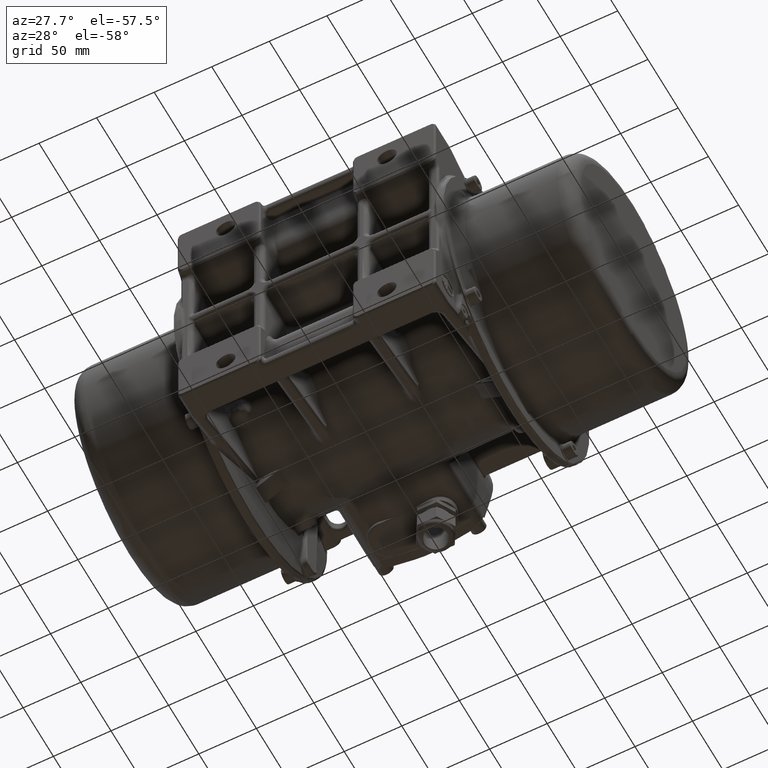
[diagram: clean part render]
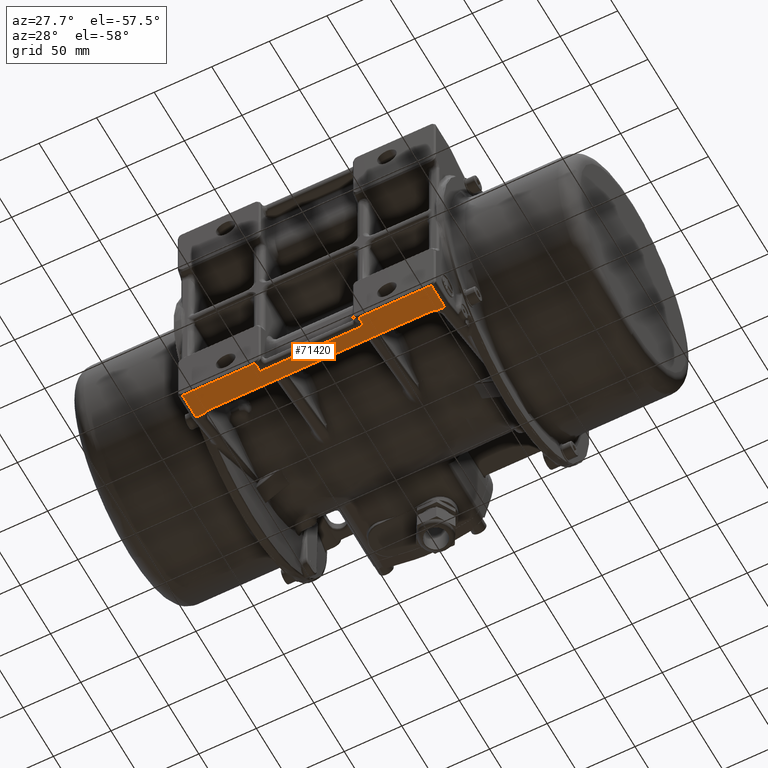
[diagram: same view with one face highlighted and labeled with its STEP entity id]
A machine part, auxiliary view. The second image highlights one B-rep face of the part: STEP entity #71420.
In plain terms, the highlighted planar face has unit normal (0, 0, -1).
Its self-contained STEP definition (entity closure, byte-faithful):
#2338 = VECTOR ( 'NONE', #97333, 1000.000000000000000 ) ;
#5724 = CARTESIAN_POINT ( 'NONE',  ( -104.9763923249194000, -65.66341387733380900, -115.0000000000000000 ) ) ;
#6106 = VECTOR ( 'NONE', #157576, 1000.000000000000000 ) ;
#6831 = EDGE_CURVE ( 'NONE', #158943, #10158, #45645, .T. ) ;
#9648 = VECTOR ( 'NONE', #144956, 1000.000000000000000 ) ;
#10158 = VERTEX_POINT ( 'NONE', #144009 ) ;
#11416 = ORIENTED_EDGE ( 'NONE', *, *, #109882, .T. ) ;
#12481 = EDGE_CURVE ( 'NONE', #116596, #122172, #183683, .T. ) ;
#13867 = CARTESIAN_POINT ( 'NONE',  ( 95.34508423835029600, -65.06525406753129900, -115.0000000000000000 ) ) ;
#19187 = AXIS2_PLACEMENT_3D ( 'NONE', #193343, #86679, #194000 ) ;
#20504 = VECTOR ( 'NONE', #118751, 1000.000000000000000 ) ;
#21161 = CARTESIAN_POINT ( 'NONE',  ( -106.0609846594930000, -65.06525406753129900, -115.0000000000000000 ) ) ;
#26195 = VECTOR ( 'NONE', #98720, 1000.000000000000000 ) ;
#27162 = VECTOR ( 'NONE', #136116, 1000.000000000000000 ) ;
#29799 = EDGE_LOOP ( 'NONE', ( #127564, #11416, #63375, #105199, #59563, #101004, #141035, #68606, #109958, #65617, #150318, #38429 ) ) ;
#33730 = DIRECTION ( 'NONE',  ( -1.000000000000000000, 0.0000000000000000000, 0.0000000000000000000 ) ) ;
#34005 = VERTEX_POINT ( 'NONE', #197857 ) ;
#38429 = ORIENTED_EDGE ( 'NONE', *, *, #91145, .T. ) ;
#41847 = LINE ( 'NONE', #110906, #190752 ) ;
#44241 = CARTESIAN_POINT ( 'NONE',  ( 102.6420498956300000, -76.12854099828210500, -115.0000000000000000 ) ) ;
#45645 = LINE ( 'NONE', #57659, #9648 ) ;
#57659 = CARTESIAN_POINT ( 'NONE',  ( -5.357950104370020000, -87.19182792903309600, -115.0000000000000000 ) ) ;
#57974 = CARTESIAN_POINT ( 'NONE',  ( -50.35795010436999800, -87.19182792903299600, -115.0000000000000000 ) ) ;
#59563 = ORIENTED_EDGE ( 'NONE', *, *, #6831, .T. ) ;
#63375 = ORIENTED_EDGE ( 'NONE', *, *, #142141, .T. ) ;
#65617 = ORIENTED_EDGE ( 'NONE', *, *, #198214, .T. ) ;
#68606 = ORIENTED_EDGE ( 'NONE', *, *, #128386, .F. ) ;
#71420 = ADVANCED_FACE ( 'NONE', ( #163781 ), #84698, .T. ) ;
#72097 = B_SPLINE_CURVE_WITH_KNOTS ( 'NONE', 3,
 ( #74914, #105112, #90358, #197697, #105796, #13867 ),
 .UNSPECIFIED., .F., .F.,
 ( 4, 2, 4 ),
 ( 0.0000000000000000000, 0.5000000000000000000, 1.000000000000000000 ),
 .UNSPECIFIED. ) ;
#74914 = CARTESIAN_POINT ( 'NONE',  ( 90.64204989563000900, -66.39182797671671200, -115.0000000000000000 ) ) ;
#76379 = EDGE_CURVE ( 'NONE', #122124, #192654, #81315, .T. ) ;
#76577 = CARTESIAN_POINT ( 'NONE',  ( -5.357950104370020000, -78.89182797671671200, -115.0000000000000000 ) ) ;
#77079 = VECTOR ( 'NONE', #119950, 1000.000000000000000 ) ;
#81315 = LINE ( 'NONE', #150278, #198970 ) ;
#81891 = CARTESIAN_POINT ( 'NONE',  ( 39.64204989563000200, -76.12854099828210500, -115.0000000000000000 ) ) ;
#82554 = EDGE_CURVE ( 'NONE', #10158, #34005, #87671, .T. ) ;
#84698 = PLANE ( 'NONE',  #19187 ) ;
#86679 = DIRECTION ( 'NONE',  ( 0.0000000000000000000, 0.0000000000000000000, -1.000000000000000000 ) ) ;
#87671 = LINE ( 'NONE', #142150, #6106 ) ;
#90358 = CARTESIAN_POINT ( 'NONE',  ( 92.29079568989548900, -66.27789592823744200, -115.0000000000000100 ) ) ;
#91145 = EDGE_CURVE ( 'NONE', #192654, #116596, #154396, .T. ) ;
#91513 = LINE ( 'NONE', #103855, #77079 ) ;
#93230 = CARTESIAN_POINT ( 'NONE',  ( 39.64204989563000200, -87.19182792903299600, -115.0000000000000000 ) ) ;
#93599 = EDGE_CURVE ( 'NONE', #155631, #158943, #91513, .T. ) ;
#96876 = CARTESIAN_POINT ( 'NONE',  ( 39.64204989563000200, -78.89182797671671200, -114.9999999992876000 ) ) ;
#97333 = DIRECTION ( 'NONE',  ( 0.0000000000000000000, 1.000000000000000000, 0.0000000000000000000 ) ) ;
#97629 = CARTESIAN_POINT ( 'NONE',  ( -103.8089240581407900, -66.08113929133359900, -115.0000000000000000 ) ) ;
#98720 = DIRECTION ( 'NONE',  ( 1.000000000000000000, 0.0000000000000000000, 0.0000000000000000000 ) ) ;
#101004 = ORIENTED_EDGE ( 'NONE', *, *, #82554, .T. ) ;
#103080 = EDGE_CURVE ( 'NONE', #158074, #174551, #41847, .T. ) ;
#103855 = CARTESIAN_POINT ( 'NONE',  ( -50.35795010436999800, -76.12854099828220500, -115.0000000000000000 ) ) ;
#105112 = CARTESIAN_POINT ( 'NONE',  ( 91.46838258118278000, -66.39172674197493500, -114.9999999999999900 ) ) ;
#105199 = ORIENTED_EDGE ( 'NONE', *, *, #93599, .T. ) ;
#105796 = CARTESIAN_POINT ( 'NONE',  ( 94.63992502462140500, -65.49732653513696300, -115.0000000000000100 ) ) ;
#109882 = EDGE_CURVE ( 'NONE', #122172, #117189, #129531, .T. ) ;
#109958 = ORIENTED_EDGE ( 'NONE', *, *, #103080, .T. ) ;
#109985 = B_SPLINE_CURVE_WITH_KNOTS ( 'NONE', 3,
 ( #127828, #174084, #189550, #97629, #5724, #113043, #21161 ),
 .UNSPECIFIED., .F., .F.,
 ( 4, 1, 1, 1, 4 ),
 ( 0.0000000000000000000, 0.2500000000000008900, 0.5000000000000000000, 0.7499999999999993300, 1.000000000000000000 ),
 .UNSPECIFIED. ) ;
#110906 = CARTESIAN_POINT ( 'NONE',  ( -5.357950104370020000, -66.39182797671671200, -115.0000000000000000 ) ) ;
#113043 = CARTESIAN_POINT ( 'NONE',  ( -105.7096586235704100, -65.28058140539579300, -115.0000000000000000 ) ) ;
#116596 = VERTEX_POINT ( 'NONE', #133287 ) ;
#117189 = VERTEX_POINT ( 'NONE', #96876 ) ;
#118751 = DIRECTION ( 'NONE',  ( -1.000000000000000000, 0.0000000000000000000, 0.0000000000000000000 ) ) ;
#119950 = DIRECTION ( 'NONE',  ( 0.0000000000000000000, -1.000000000000000000, 0.0000000000000000000 ) ) ;
#122124 = VERTEX_POINT ( 'NONE', #152230 ) ;
#122172 = VERTEX_POINT ( 'NONE', #93230 ) ;
#123293 = VECTOR ( 'NONE', #33730, 1000.000000000000000 ) ;
#126311 = DIRECTION ( 'NONE',  ( 1.000000000000000000, 0.0000000000000000000, 0.0000000000000000000 ) ) ;
#127356 = CARTESIAN_POINT ( 'NONE',  ( -50.35795010436999800, -78.89182797671671200, -114.9999999992876000 ) ) ;
#127564 = ORIENTED_EDGE ( 'NONE', *, *, #12481, .T. ) ;
#127828 = CARTESIAN_POINT ( 'NONE',  ( -101.3579503167726000, -66.39182797671671200, -115.0000000000000000 ) ) ;
#128386 = EDGE_CURVE ( 'NONE', #158074, #139951, #109985, .T. ) ;
#129531 = LINE ( 'NONE', #81891, #2338 ) ;
#133287 = CARTESIAN_POINT ( 'NONE',  ( 102.6420498956300000, -87.19182792903299600, -115.0000000000000000 ) ) ;
#136116 = DIRECTION ( 'NONE',  ( 0.0000000000000000000, -1.000000000000000000, 0.0000000000000000000 ) ) ;
#139951 = VERTEX_POINT ( 'NONE', #189257 ) ;
#141035 = ORIENTED_EDGE ( 'NONE', *, *, #184479, .T. ) ;
#142141 = EDGE_CURVE ( 'NONE', #117189, #155631, #164037, .T. ) ;
#142150 = CARTESIAN_POINT ( 'NONE',  ( -113.3579501043699900, -76.12912069402330000, -115.0000000000000000 ) ) ;
#144009 = CARTESIAN_POINT ( 'NONE',  ( -113.3579501043699900, -87.19182792903299600, -115.0000000000000000 ) ) ;
#144956 = DIRECTION ( 'NONE',  ( -1.000000000000000000, 0.0000000000000000000, 0.0000000000000000000 ) ) ;
#150278 = CARTESIAN_POINT ( 'NONE',  ( -5.357950104370020000, -65.06525406753129900, -115.0000000000000000 ) ) ;
#150318 = ORIENTED_EDGE ( 'NONE', *, *, #76379, .T. ) ;
#152230 = CARTESIAN_POINT ( 'NONE',  ( 95.34508423835029600, -65.06525406753129900, -115.0000000000000000 ) ) ;
#154396 = LINE ( 'NONE', #44241, #27162 ) ;
#155631 = VERTEX_POINT ( 'NONE', #127356 ) ;
#157576 = DIRECTION ( 'NONE',  ( 0.0000000000000000000, 1.000000000000000000, 0.0000000000000000000 ) ) ;
#158074 = VERTEX_POINT ( 'NONE', #177170 ) ;
#158943 = VERTEX_POINT ( 'NONE', #57974 ) ;
#163781 = FACE_OUTER_BOUND ( 'NONE', #29799, .T. ) ;
#164037 = LINE ( 'NONE', #76577, #123293 ) ;
#165741 = DIRECTION ( 'NONE',  ( 1.000000000000000000, 0.0000000000000000000, 0.0000000000000000000 ) ) ;
#174084 = CARTESIAN_POINT ( 'NONE',  ( -101.7700132318095900, -66.39182797671671200, -115.0000000000000000 ) ) ;
#174551 = VERTEX_POINT ( 'NONE', #175002 ) ;
#175002 = CARTESIAN_POINT ( 'NONE',  ( 90.64204989563000900, -66.39182797671671200, -115.0000000000000000 ) ) ;
#177170 = CARTESIAN_POINT ( 'NONE',  ( -101.3579503167726000, -66.39182797671671200, -115.0000000000000000 ) ) ;
#181104 = CARTESIAN_POINT ( 'NONE',  ( -5.357950104370010200, -87.19182792903299600, -115.0000000000000000 ) ) ;
#183683 = LINE ( 'NONE', #181104, #20504 ) ;
#184479 = EDGE_CURVE ( 'NONE', #34005, #139951, #184640, .T. ) ;
#184640 = LINE ( 'NONE', #191272, #26195 ) ;
#189257 = CARTESIAN_POINT ( 'NONE',  ( -106.0609846594930000, -65.06525406753129900, -115.0000000000000000 ) ) ;
#189550 = CARTESIAN_POINT ( 'NONE',  ( -102.5952508996560100, -66.33505687601289900, -115.0000000000000000 ) ) ;
#190752 = VECTOR ( 'NONE', #126311, 1000.000000000000000 ) ;
#191272 = CARTESIAN_POINT ( 'NONE',  ( -109.7099642639964000, -65.06525406753129900, -115.0000000000000000 ) ) ;
#192654 = VERTEX_POINT ( 'NONE', #192717 ) ;
#192717 = CARTESIAN_POINT ( 'NONE',  ( 102.6420498956300000, -65.06525406753129900, -115.0000000000000000 ) ) ;
#193343 = CARTESIAN_POINT ( 'NONE',  ( -113.3591094958523900, -87.19298732051538500, -115.0000000000000000 ) ) ;
#194000 = DIRECTION ( 'NONE',  ( 0.0000000000000000000, 1.000000000000000000, 0.0000000000000000000 ) ) ;
#197697 = CARTESIAN_POINT ( 'NONE',  ( 93.87984995353275500, -65.82978004465637400, -114.9999999999999900 ) ) ;
#197857 = CARTESIAN_POINT ( 'NONE',  ( -113.3579501043699900, -65.06525406753129900, -115.0000000000000000 ) ) ;
#198214 = EDGE_CURVE ( 'NONE', #174551, #122124, #72097, .T. ) ;
#198970 = VECTOR ( 'NONE', #165741, 1000.000000000000000 ) ;